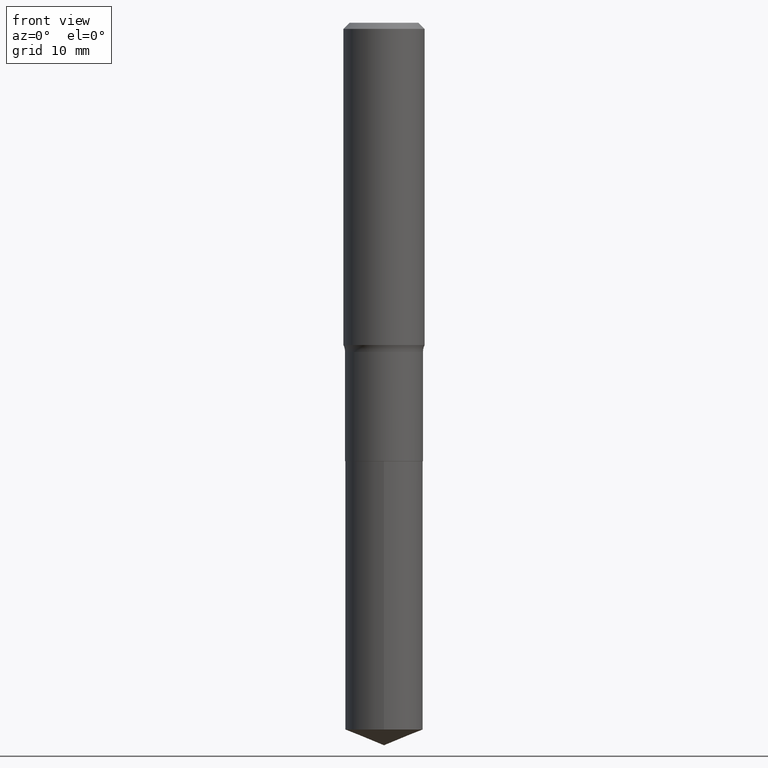
[diagram: clean part render]
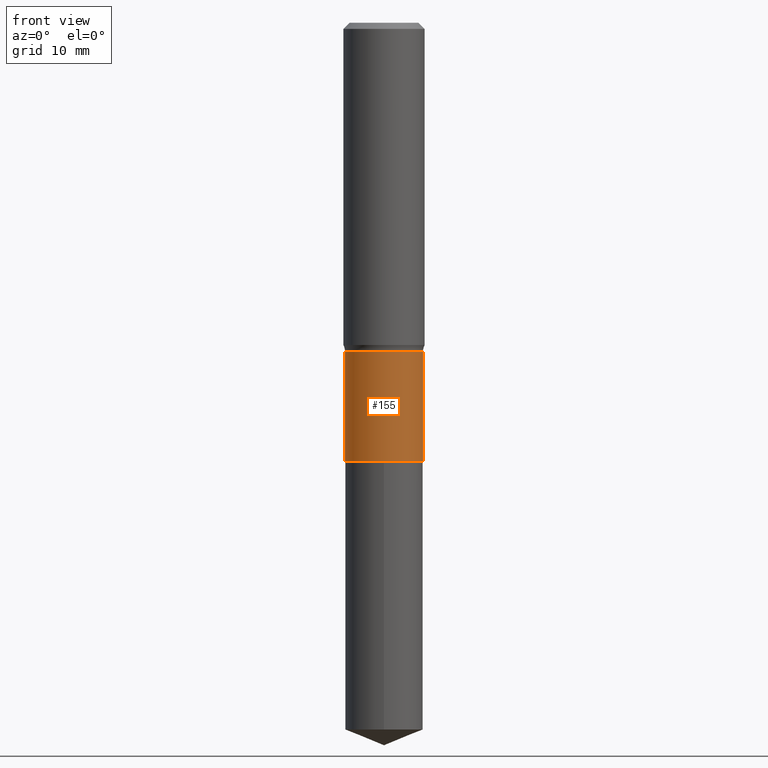
[diagram: same view with one face highlighted and labeled with its STEP entity id]
A machine part, front view. The second image highlights one B-rep face of the part: STEP entity #155.
In plain terms, the highlighted cylindrical surface (partial cylindrical patch) has radius 4.8006 mm, axis along (-0, 0, 1).
Its self-contained STEP definition (entity closure, byte-faithful):
#12 = DIRECTION ( 'NONE',  ( -2.445468806185136597E-29, 3.491481338843145583E-15, 1.000000000000000000 ) ) ;
#15 = AXIS2_PLACEMENT_3D ( 'NONE', #315, #321, #361 ) ;
#17 = CARTESIAN_POINT ( 'NONE',  ( -0.1889999999999999458, 1.342925770586588966E-15, -9.296787320581769859E-30 ) ) ;
#19 = EDGE_CURVE ( 'NONE', #316, #167, #53, .T. ) ;
#28 = LINE ( 'NONE', #147, #144 ) ;
#29 = AXIS2_PLACEMENT_3D ( 'NONE', #187, #376, #295 ) ;
#51 = CARTESIAN_POINT ( 'NONE',  ( 0.000000000000000000, 0.000000000000000000, 0.000000000000000000 ) ) ;
#53 = LINE ( 'NONE', #17, #111 ) ;
#65 = CARTESIAN_POINT ( 'NONE',  ( 0.1889999999999999181, -6.894977347947437919E-15, -1.596799999999999775 ) ) ;
#85 = EDGE_CURVE ( 'NONE', #167, #233, #363, .T. ) ;
#111 = VECTOR ( 'NONE', #165, 39.37007874015748143 ) ;
#134 = FACE_OUTER_BOUND ( 'NONE', #309, .T. ) ;
#135 = ORIENTED_EDGE ( 'NONE', *, *, #19, .F. ) ;
#144 = VECTOR ( 'NONE', #329, 39.37007874015748143 ) ;
#147 = CARTESIAN_POINT ( 'NONE',  ( 0.1889999999999999458, -1.319779946082704030E-15, 9.215974106254316519E-30 ) ) ;
#155 = ADVANCED_FACE ( 'NONE', ( #134 ), #214, .T. ) ;
#165 = DIRECTION ( 'NONE',  ( -2.445468806185136877E-29, 3.491481338843145188E-15, 1.000000000000000000 ) ) ;
#167 = VERTEX_POINT ( 'NONE', #173 ) ;
#168 = DIRECTION ( 'NONE',  ( 1.000000000000000000, -6.982962677686266711E-15, 4.876176775795935793E-29 ) ) ;
#173 = CARTESIAN_POINT ( 'NONE',  ( -0.1889999999999999181, -5.155070149134388786E-15, -1.596799999999999775 ) ) ;
#176 = CARTESIAN_POINT ( 'NONE',  ( 0.1889999999999999736, -8.740574383659924856E-15, -2.125399999999999956 ) ) ;
#187 = CARTESIAN_POINT ( 'NONE',  ( 5.197599400665889285E-29, -7.420794437577220826E-15, -2.125399999999999956 ) ) ;
#191 = CARTESIAN_POINT ( 'NONE',  ( -0.1889999999999999736, -5.155070149134388786E-15, -2.125399999999999956 ) ) ;
#198 = VERTEX_POINT ( 'NONE', #176 ) ;
#200 = EDGE_CURVE ( 'NONE', #316, #198, #325, .T. ) ;
#214 = CYLINDRICAL_SURFACE ( 'NONE', #468, 0.1889999999999999458 ) ;
#225 = EDGE_CURVE ( 'NONE', #198, #233, #28, .T. ) ;
#233 = VERTEX_POINT ( 'NONE', #65 ) ;
#295 = DIRECTION ( 'NONE',  ( 1.000000000000000000, -6.982962677686266711E-15, 0.000000000000000000 ) ) ;
#309 = EDGE_LOOP ( 'NONE', ( #135, #360, #466, #322 ) ) ;
#315 = CARTESIAN_POINT ( 'NONE',  ( 3.904924589716425410E-29, -5.575197401864733889E-15, -1.596799999999999775 ) ) ;
#316 = VERTEX_POINT ( 'NONE', #191 ) ;
#321 = DIRECTION ( 'NONE',  ( -2.445468806185136597E-29, 3.491481338843145583E-15, 1.000000000000000000 ) ) ;
#322 = ORIENTED_EDGE ( 'NONE', *, *, #85, .F. ) ;
#325 = CIRCLE ( 'NONE', #29, 0.1889999999999999736 ) ;
#329 = DIRECTION ( 'NONE',  ( -2.445468806185136877E-29, 3.491481338843145188E-15, 1.000000000000000000 ) ) ;
#360 = ORIENTED_EDGE ( 'NONE', *, *, #200, .T. ) ;
#361 = DIRECTION ( 'NONE',  ( 1.000000000000000000, -6.982962677686269077E-15, 0.000000000000000000 ) ) ;
#363 = CIRCLE ( 'NONE', #15, 0.1889999999999999181 ) ;
#376 = DIRECTION ( 'NONE',  ( -2.445468806185136597E-29, 3.491481338843145583E-15, 1.000000000000000000 ) ) ;
#466 = ORIENTED_EDGE ( 'NONE', *, *, #225, .T. ) ;
#468 = AXIS2_PLACEMENT_3D ( 'NONE', #51, #12, #168 ) ;